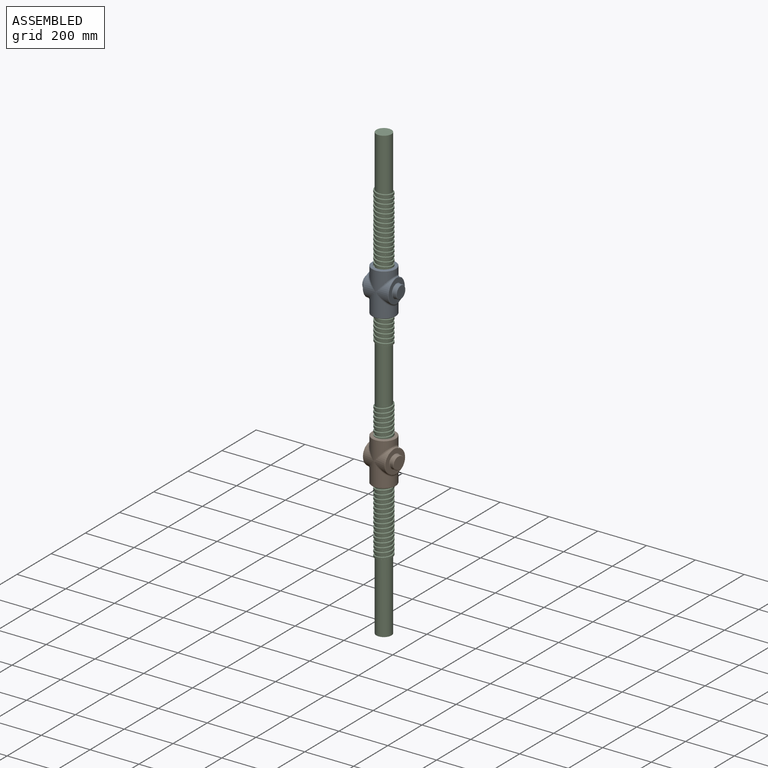
[diagram: assembled view]
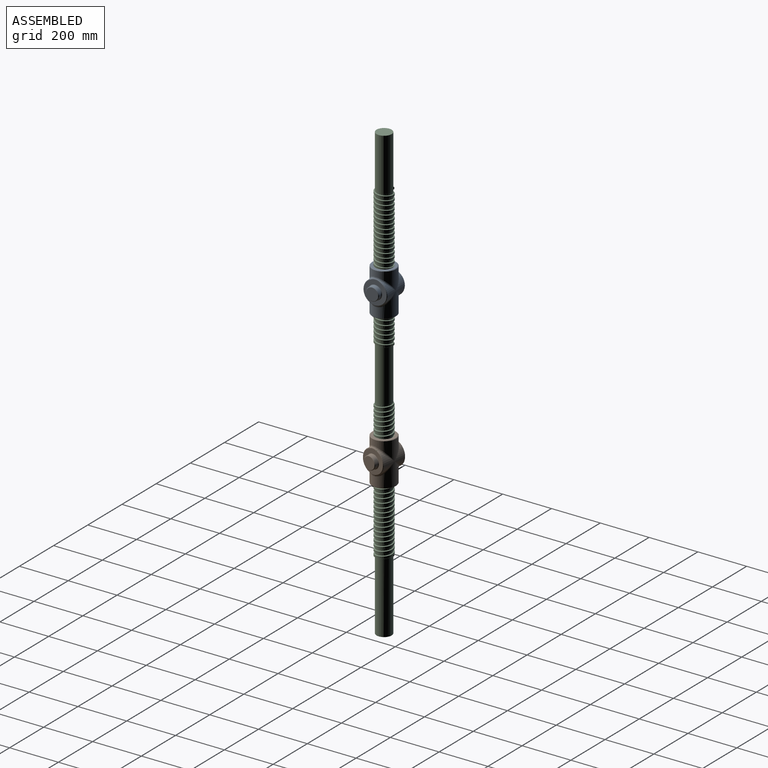
[diagram: assembled view, second angle]
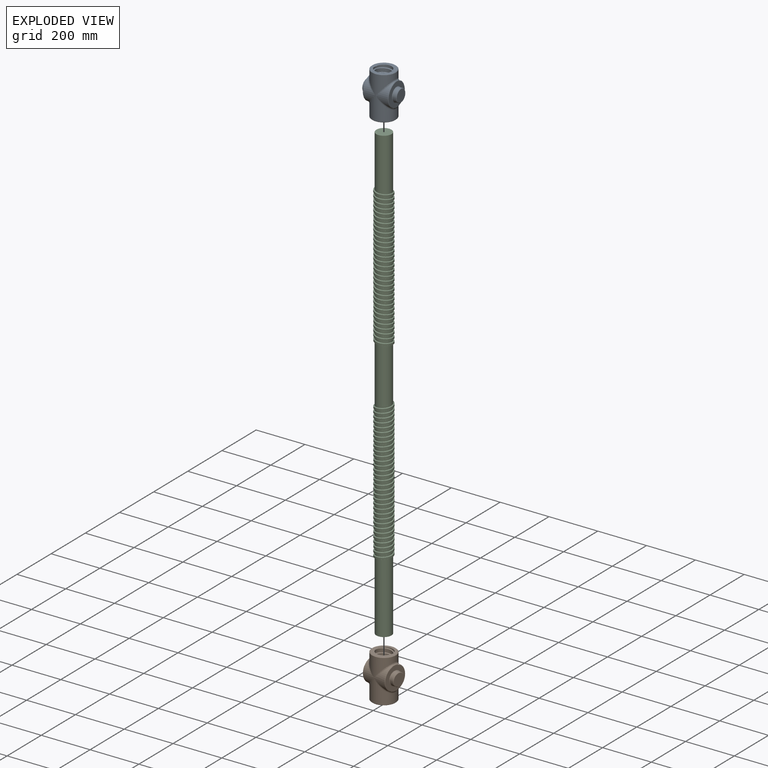
[diagram: exploded view]
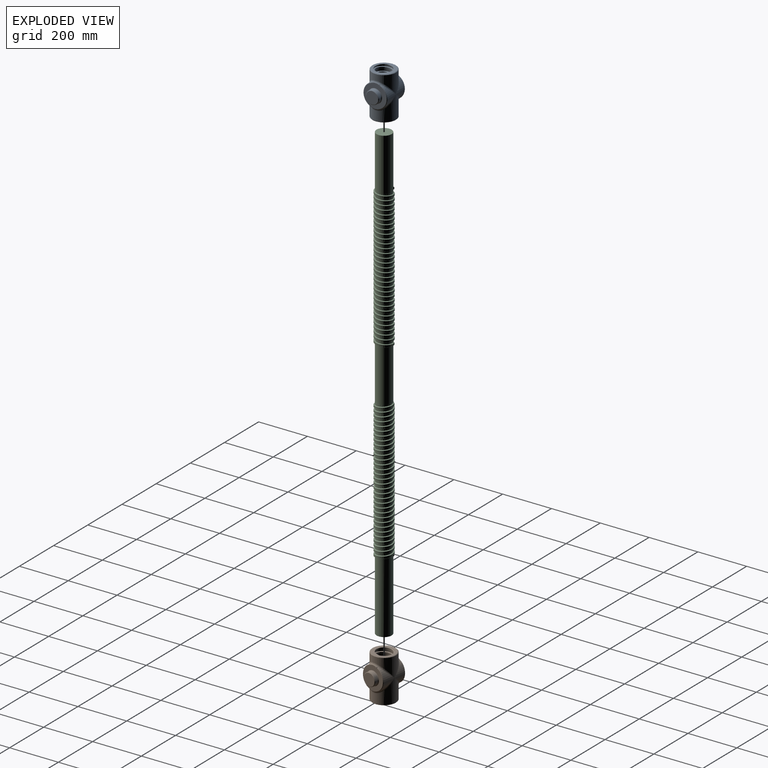
[diagram: exploded view, second angle]
ASSEMBLY  parts=3 mates=2
PART A: 56 faces, bbox 142.9x99.3x195.1 mm
  f0: cylinder r=48.9mm len=90.03mm, axis (-1,0,0), area 2949.3mm2, adj f27,f32,f36
  f1: cylinder r=48.9mm len=88.48mm, axis (-1,0,0), area 2801.8mm2, adj f24,f35,f47
  f2: cylinder r=48.9mm len=97.79mm, axis (0,0,1), area 14634.8mm2, adj f15,f24,f25,f26,f30,f31,f32
  f3: cylinder r=48.9mm len=97.79mm, axis (0,0,1), area 19100.5mm2, adj f14,f27,f28,f29,f33,f34,f35
  f4: bspline ~179.75x66.88mm, area 464.4mm2, adj f5,f9,f11,f12
  f5: bspline ~193.59x66.65mm, area 13729.9mm2, adj f4,f6,f11,f12
  f6: bspline ~179.75x66.9mm, area 436.8mm2, adj f5,f7,f11,f12
  f7: bspline ~181.01x75.51mm, area 9255.8mm2, adj f6,f8,f11,f12
  f8: bspline ~179.75x75.76mm, area 24.3mm2, adj f7,f10,f11,f12
  f9: bspline ~182.49x75.64mm, area 8789.2mm2, adj f4,f11,f12,f13
  f10: cylinder r=35.92mm len=177.8mm, axis (0,0,1), area 17723mm2, adj f8,f11,f12,f13
  f11: plane 94.7x94.7mm, normal (0,0,-1), area 3352mm2, adj f4,f5,f6,f7,f8,f9,f10,f13
  f12: plane 94.7x94.7mm, normal (0,0,1), area 3352mm2, adj f4,f5,f6,f7,f8,f9,f10,f13
  f13: bspline ~178.71x71.86mm, area 525.2mm2, adj f9,f10,f11,f12
  f14: cone r=47.12mm half-angle=45deg, axis (0,0,1), area 758.4mm2, adj f3,f11
  f15: cone r=48.9mm half-angle=45deg, axis (0,0,-1), area 758.4mm2, adj f2,f12
  f16: cylinder r=48.9mm len=90.03mm, axis (-1,0,0), area 2949.3mm2, adj f29,f30,f43
  f17: plane 96.29x94.94mm, normal (-1,0,0), area 4462.7mm2, adj f36,f37,f38,f39,f40,f41,f42,f43
  f18: plane 97.44x95.79mm, normal (1,0,0), area 4474.3mm2, adj f46,f47,f48,f49,f50,f51,f52,f53
  f19: cylinder r=48.9mm len=88.48mm, axis (-1,0,0), area 2801.8mm2, adj f26,f33,f52
  f20: cylinder r=26.67mm len=53.34mm, axis (-1,0,0), area 2383.6mm2, adj f54,f55
  f21: plane 49.78x49.78mm, normal (1,0,0), area 1946.6mm2, adj f55
  f22: cylinder r=26.67mm len=53.34mm, axis (1,0,0), area 2383.6mm2, adj f44,f45
  f23: plane 49.78x49.78mm, normal (-1,0,0), area 1946.6mm2, adj f45
  f24: bspline ~54.13x54.13mm, area 417.9mm2, adj f1,f2,f25,f46
  f25: bspline ~35.76x9.54mm, area 245.4mm2, adj f2,f24,f26,f48
  f26: bspline ~54.13x54.13mm, area 417.9mm2, adj f2,f19,f25,f50
  f27: bspline ~54.13x54.13mm, area 443.1mm2, adj f0,f3,f28,f37
  f28: bspline ~32.46x9.56mm, area 230.7mm2, adj f3,f27,f29,f39
  f29: bspline ~54.13x54.13mm, area 443mm2, adj f3,f16,f28,f41
  f30: bspline ~54.13x54.13mm, area 443.1mm2, adj f2,f16,f31,f42
  f31: bspline ~32.46x9.56mm, area 230.7mm2, adj f2,f30,f32,f40
  f32: bspline ~54.13x54.13mm, area 443mm2, adj f0,f2,f31,f38
  f33: bspline ~54.13x54.13mm, area 417.9mm2, adj f3,f19,f34,f53
  f34: bspline ~35.76x9.54mm, area 245.4mm2, adj f3,f33,f35,f51
  f35: bspline ~54.13x54.13mm, area 312.6mm2, adj f1,f3,f34,f49
  f36: cone r=48.9mm half-angle=45deg, axis (1,0,0), area 282.4mm2, adj f0,f17,f37,f38
  f37: bspline ~5.18x3.47mm, area 11.5mm2, adj f17,f27,f36,f39
  f38: bspline ~5.18x3.47mm, area 11.5mm2, adj f17,f32,f36,f40
  f39: bspline ~29.09x4.1mm, area 54.8mm2, adj f17,f28,f37,f41
  f40: bspline ~29.09x4.1mm, area 54.8mm2, adj f17,f31,f38,f42
  f41: bspline ~5.18x3.47mm, area 11.5mm2, adj f17,f29,f39,f43
  f42: bspline ~5.18x3.47mm, area 11.5mm2, adj f17,f30,f40,f43
  f43: cone r=48.9mm half-angle=45deg, axis (1,0,0), area 282.4mm2, adj f16,f17,f41,f42
  f44: cone r=26.67mm half-angle=45deg, axis (1,0,0), area 435.4mm2, adj f17,f22
  f45: cone r=24.89mm half-angle=45deg, axis (1,0,0), area 407.3mm2, adj f22,f23
  f46: bspline ~4.82x3.49mm, area 10.5mm2, adj f18,f24,f47,f48
  f47: cone r=47.12mm half-angle=45deg, axis (-1,0,0), area 273mm2, adj f1,f18,f46,f49
  f48: bspline ~33.47x4.83mm, area 59.6mm2, adj f18,f25,f46,f50
  f49: bspline ~4.82x3.49mm, area 10.5mm2, adj f18,f35,f47,f51
  f50: bspline ~4.82x3.49mm, area 10.5mm2, adj f18,f26,f48,f52
  f51: bspline ~33.47x4.83mm, area 59.6mm2, adj f18,f34,f49,f53
  f52: cone r=47.12mm half-angle=45deg, axis (-1,0,0), area 273mm2, adj f18,f19,f50,f53
  f53: bspline ~4.82x3.49mm, area 10.5mm2, adj f18,f33,f51,f52
  f54: cone r=26.67mm half-angle=45deg, axis (-1,0,0), area 435.4mm2, adj f18,f20
  f55: cone r=24.89mm half-angle=45deg, axis (-1,0,0), area 407.3mm2, adj f20,f21
PART B: same geometry as A
PART C: 34 faces, bbox 71.4x75x1857 mm
  f0: cylinder r=31.12mm len=212.12mm, axis (0,0,1), area 41468.8mm2, adj f2,f19
  f1: cylinder r=31.2mm len=568.96mm, axis (0,0,-1), area 63885.9mm2, adj f2,f3,f6,f7,f10,f15
  f2: plane 62.41x62.41mm, normal (0,0,-1), area 17.3mm2, adj f0,f1,f8,f9,f10
  f3: plane 62.4x62.4mm, normal (0,0,1), area 17mm2, adj f1,f4,f6,f7,f11
  f4: cylinder r=31.12mm len=217.23mm, axis (0,0,-1), area 42467.9mm2, adj f3,f5
  f5: plane 62.23x62.23mm, normal (0,0,1), area 3041.5mm2, adj f4
  f6: plane 10.09x4.43mm, normal (0,-1,0), area 39.4mm2, adj f1,f3,f7,f10,f11,f12,f13,f14
  f7: bspline ~570.11x74.65mm, area 29888.5mm2, adj f1,f3,f6,f11,f12,f15
  f8: plane 1.15x0mm, normal (0,1,0), area 0mm2, adj f2,f9,f10,f15
  f9: cylinder r=31.2mm len=12.25mm, axis (0,0,1), area 7.2mm2, adj f2,f8,f10
  f10: bspline ~570.11x74.65mm, area 29877.8mm2, adj f1,f2,f6,f8,f9,f14,f15
  f11: cylinder r=31.2mm len=62.4mm, axis (0,0,1), area 441.2mm2, adj f3,f6,f7
  f12: bspline ~569.13x74.93mm, area 1664.4mm2, adj f6,f7,f13,f15
  f13: cylinder r=35.63mm len=574.97mm, axis (0,0,1), area 53192.7mm2, adj f6,f12,f14,f15
  f14: bspline ~569.13x74.93mm, area 1664.3mm2, adj f6,f10,f13,f15
  f15: plane 17.28x10.63mm, normal (1,0,0), area 159.6mm2, adj f1,f7,f8,f10,f12,f13,f14
  f16: plane 0.1x0mm, normal (0,-1,0), area 0mm2, adj f18,f19,f29,f31
  f17: plane 1.35x0.41mm, normal (-0.74,0.67,0), area 0mm2, adj f18,f19,f29,f31,f33
  f18: cylinder r=31.2mm len=12.25mm, axis (0,0,-1), area 8.5mm2, adj f16,f17,f19,f29
  f19: plane 62.41x62.41mm, normal (0,0,1), area 17.3mm2, adj f0,f16,f17,f18,f31
  f20: plane 62.23x62.23mm, normal (0,0,-1), area 3041.5mm2, adj f21
  f21: cylinder r=31.12mm len=288.35mm, axis (0,0,1), area 56372mm2, adj f20,f23
  f22: cylinder r=31.2mm len=62.4mm, axis (0,0,-1), area 441.2mm2, adj f23,f26,f28
  f23: plane 62.6x62.47mm, normal (0,0,-1), area 17mm2, adj f21,f22,f26,f28,f31,f32
  f24: bspline ~569.13x74.93mm, area 1664.4mm2, adj f25,f26,f28,f30
  f25: cylinder r=35.63mm len=574.97mm, axis (0,0,-1), area 53192.7mm2, adj f24,f27,f28,f30
  f26: bspline ~570.11x74.65mm, area 29037.5mm2, adj f22,f23,f24,f28,f30,f32
  f27: bspline ~569.13x74.93mm, area 1664.3mm2, adj f25,f28,f29,f30
  f28: plane 10.23x4.44mm, normal (0,-1,0), area 39.4mm2, adj f22,f23,f24,f25,f26,f27,f29,f31
  f29: bspline ~570.11x74.65mm, area 29015.8mm2, adj f16,f17,f18,f27,f28,f30,f33
  f30: plane 17.28x10.63mm, normal (1,0,0), area 159.7mm2, adj f24,f25,f26,f27,f29,f31,f32
  f31: cylinder r=31.2mm len=570.2mm, axis (0,0,1), area 36742.5mm2, adj f16,f17,f19,f23,f28,f30,f32,f33
  f32: bspline ~560.56x62.7mm, area 1446.7mm2, adj f23,f26,f30,f31
  f33: bspline ~568.47x62.7mm, area 1466.9mm2, adj f17,f28,f29,f31
PLACE A rot(axis=(0,-0.01,-1),0deg) t=(613.28,-355.98,1163.46)mm fixed
PLACE B rot(axis=(0,0,1),170.3deg) t=(613.28,-355.98,535.11)mm
PLACE C rot(axis=(0,0,1),142.4deg) t=(613.28,-355.98,454.1)mm
MATE cylindrical B.f2 <-> C.f0  axis (0,0,1) through (613.28,-355.98,223.63)mm
MATE cylindrical C.f0 <-> A.f2  axis (0,0,1) through (613.28,-355.98,560.78)mm
